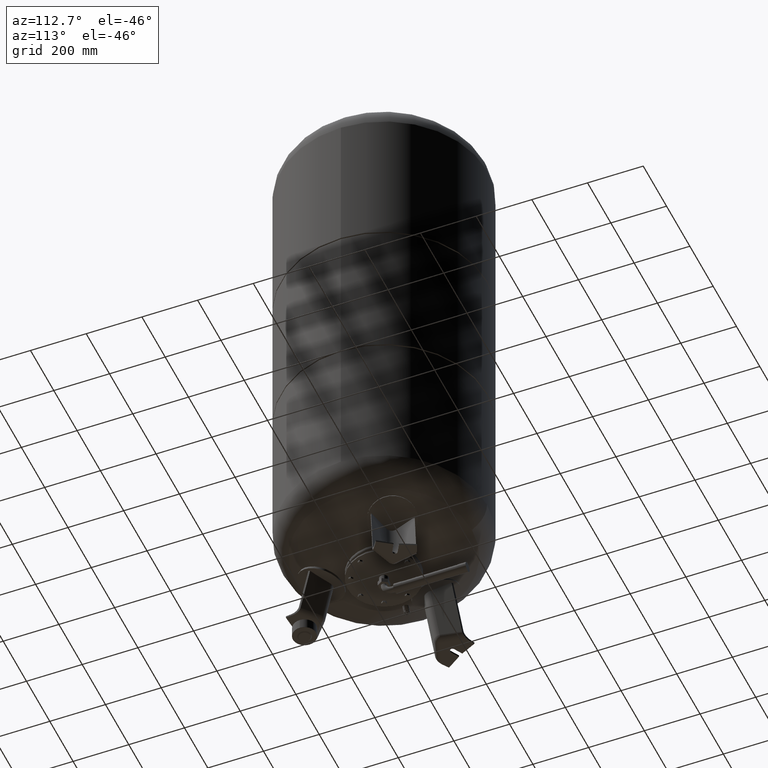
[diagram: clean part render]
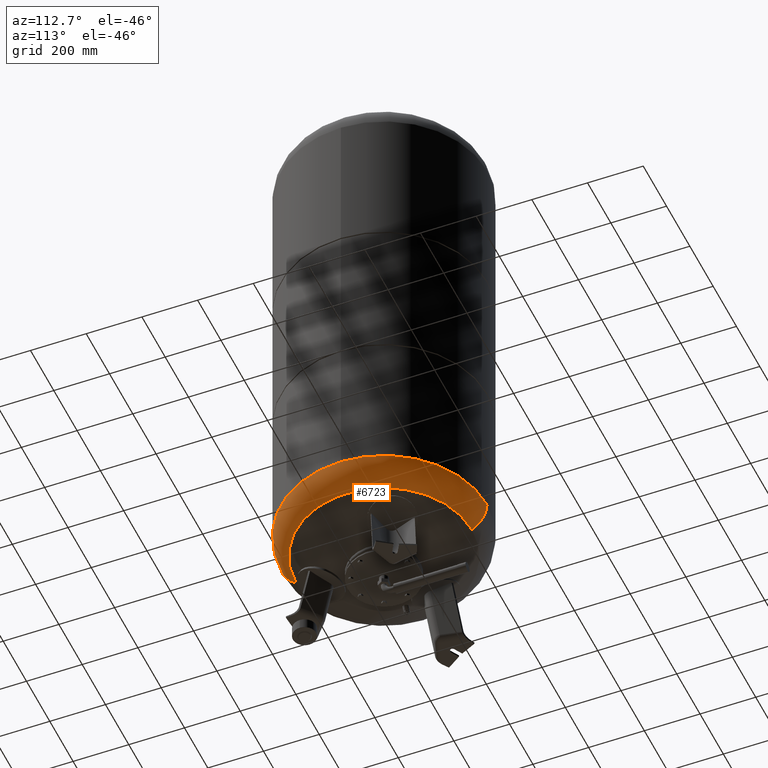
[diagram: same view with one face highlighted and labeled with its STEP entity id]
A machine part, auxiliary view. The second image highlights one B-rep face of the part: STEP entity #6723.
In plain terms, the highlighted toroidal blend (fillet) surface has major radius 254.5 mm and minor (blend) radius 115.5 mm.
Its self-contained STEP definition (entity closure, byte-faithful):
#6569=CARTESIAN_POINT('',(370.0,1.062956E-014,368.793879611869560));
#6570=VERTEX_POINT('',#6569);
#6577=CARTESIAN_POINT('',(-4.531044E-014,369.999999999999940,368.793879611869610));
#6578=VERTEX_POINT('',#6577);
#6579=CARTESIAN_POINT('',(0.0,-3.468087E-014,368.793879611869560));
#6580=DIRECTION('',(0.0,0.0,1.0));
#6581=DIRECTION('',(-1.0,0.0,0.0));
#6582=AXIS2_PLACEMENT_3D('',#6579,#6580,#6581);
#6583=CIRCLE('',#6582,370.0);
#6584=EDGE_CURVE('',#6570,#6578,#6583,.T.);
#6601=CARTESIAN_POINT('',(0.0,-370.000000000000060,368.793879611869500));
#6602=VERTEX_POINT('',#6601);
#6603=CARTESIAN_POINT('',(0.0,-315.931034482758610,270.985505725079410));
#6604=VERTEX_POINT('',#6603);
#6605=CARTESIAN_POINT('',(0.0,-254.500000000000060,368.793879611869500));
#6606=DIRECTION('',(1.0,0.0,0.0));
#6607=DIRECTION('',(0.0,-1.0,0.0));
#6608=AXIS2_PLACEMENT_3D('',#6605,#6606,#6607);
#6609=CIRCLE('',#6608,115.500000000000000);
#6610=EDGE_CURVE('',#6602,#6604,#6609,.T.);
#6620=CARTESIAN_POINT('',(-3.868912E-014,315.931034482758610,270.985505725079630));
#6621=VERTEX_POINT('',#6620);
#6622=CARTESIAN_POINT('',(-3.116623E-014,254.500000000000000,368.793879611869610));
#6623=DIRECTION('',(-1.0,0.0,0.0));
#6624=DIRECTION('',(0.0,1.0,0.0));
#6625=AXIS2_PLACEMENT_3D('',#6622,#6623,#6624);
#6626=CIRCLE('',#6625,115.500000000000000);
#6627=EDGE_CURVE('',#6578,#6621,#6626,.T.);
#6655=CARTESIAN_POINT('',(0.0,-1.671377E-014,270.985505725079520));
#6656=DIRECTION('',(0.0,0.0,1.0));
#6657=DIRECTION('',(-1.0,0.0,0.0));
#6658=AXIS2_PLACEMENT_3D('',#6655,#6656,#6657);
#6659=CIRCLE('',#6658,315.931034482758610);
#6660=EDGE_CURVE('',#6604,#6621,#6659,.T.);
#6705=CARTESIAN_POINT('',(0.0,-3.468087E-014,368.793879611869560));
#6706=DIRECTION('',(0.0,-1.836970E-016,1.0));
#6707=DIRECTION('',(0.0,-1.0,0.0));
#6708=AXIS2_PLACEMENT_3D('',#6705,#6706,#6707);
#6709=TOROIDAL_SURFACE('',#6708,254.500000000000030,115.500000000000000);
#6710=ORIENTED_EDGE('',*,*,#6610,.T.);
#6711=ORIENTED_EDGE('',*,*,#6660,.T.);
#6712=ORIENTED_EDGE('',*,*,#6627,.F.);
#6713=ORIENTED_EDGE('',*,*,#6584,.F.);
#6714=CARTESIAN_POINT('',(0.0,-3.468087E-014,368.793879611869560));
#6715=DIRECTION('',(0.0,0.0,1.0));
#6716=DIRECTION('',(-1.0,0.0,0.0));
#6717=AXIS2_PLACEMENT_3D('',#6714,#6715,#6716);
#6718=CIRCLE('',#6717,370.0);
#6719=EDGE_CURVE('',#6602,#6570,#6718,.T.);
#6720=ORIENTED_EDGE('',*,*,#6719,.F.);
#6721=EDGE_LOOP('',(#6710,#6711,#6712,#6713,#6720));
#6722=FACE_OUTER_BOUND('',#6721,.T.);
#6723=ADVANCED_FACE('',(#6722),#6709,.T.);